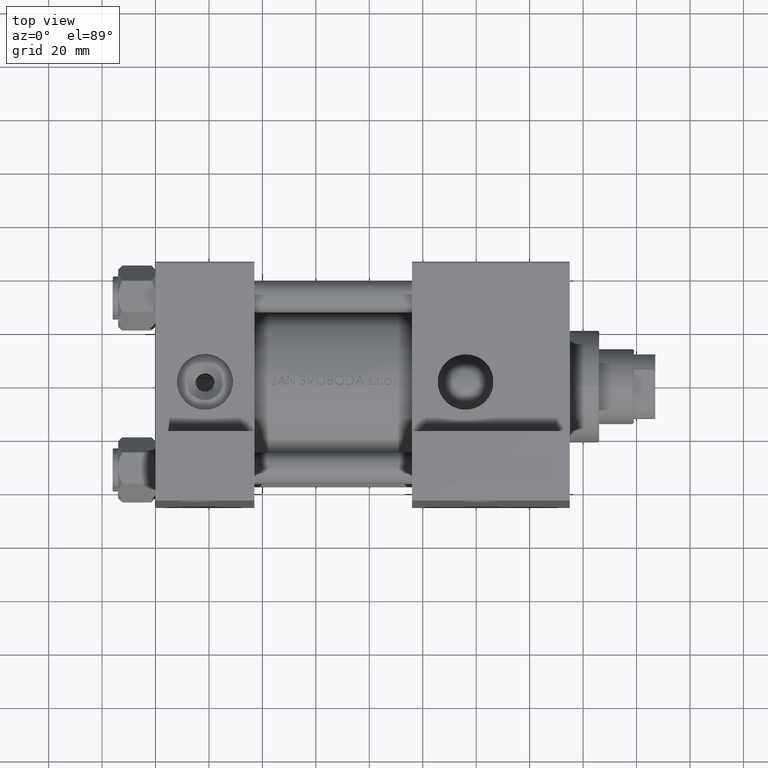
[diagram: clean part render]
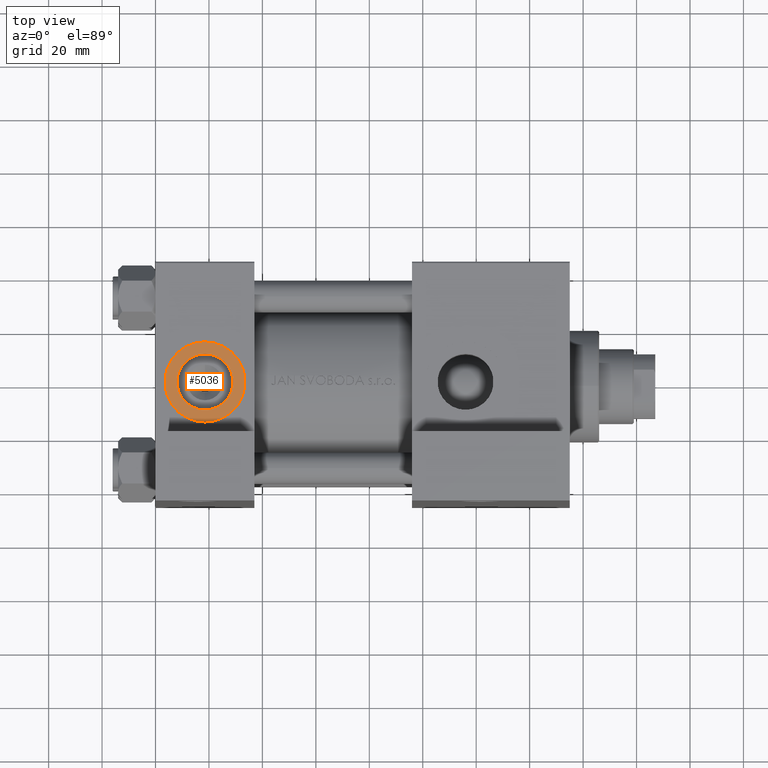
[diagram: same view with one face highlighted and labeled with its STEP entity id]
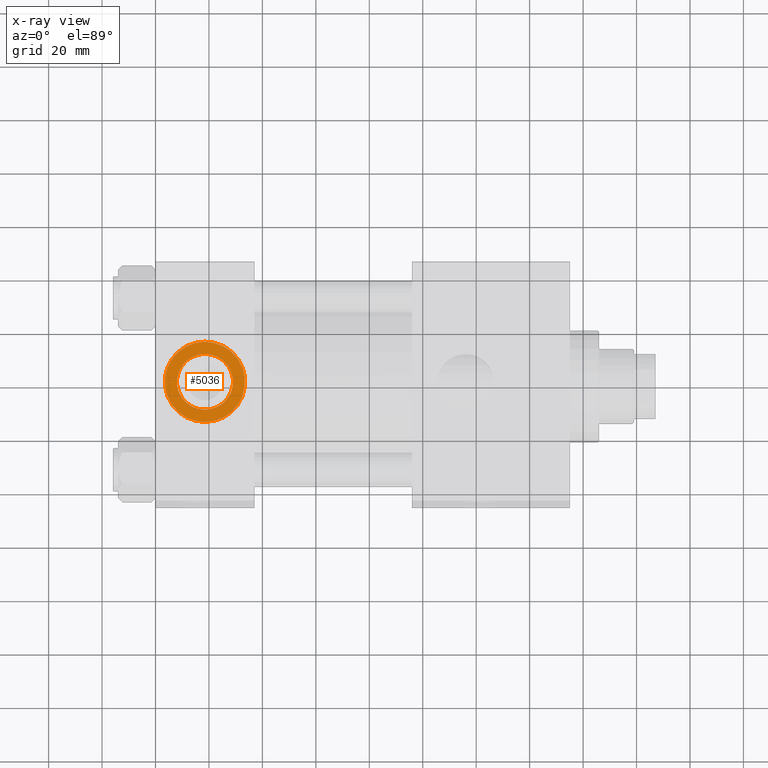
[diagram: x-ray of the same camera — body ghosted, the highlighted face saturated]
A machine part, top view. The second image highlights one B-rep face of the part: STEP entity #5036.
The next image is the same camera in x-ray: the body ghosted, the highlighted face saturated — about 0% of this face is hidden behind the body in this view.
In plain terms, the highlighted planar face has unit normal (0, -0, 1).
Its self-contained STEP definition (entity closure, byte-faithful):
#775 = CARTESIAN_POINT ( 'NONE',  ( 18.50000000000000000, -44.79999999999999716, -3.452099717193846907E-15 ) ) ;
#2315 = FACE_OUTER_BOUND ( 'NONE', #38461, .T. ) ;
#3498 = DIRECTION ( 'NONE',  ( 0.000000000000000000, 8.673617379884036705E-17, -1.000000000000000000 ) ) ;
#5036 = ADVANCED_FACE ( 'NONE', ( #35281, #2315 ), #16988, .T. ) ;
#5807 = CARTESIAN_POINT ( 'NONE',  ( 18.50000000000000000, -44.79999999999999716, 10.47999999999999687 ) ) ;
#7493 = VERTEX_POINT ( 'NONE', #45781 ) ;
#8918 = DIRECTION ( 'NONE',  ( 0.000000000000000000, -1.000000000000000000, -8.673617379884036705E-17 ) ) ;
#9437 = VERTEX_POINT ( 'NONE', #43790 ) ;
#11807 = AXIS2_PLACEMENT_3D ( 'NONE', #46374, #28063, #3498 ) ;
#14487 = DIRECTION ( 'NONE',  ( 0.000000000000000000, -1.000000000000000000, -8.673617379884036705E-17 ) ) ;
#15446 = DIRECTION ( 'NONE',  ( 0.000000000000000000, 0.000000000000000000, -1.000000000000000000 ) ) ;
#15965 = VERTEX_POINT ( 'NONE', #5807 ) ;
#16131 = DIRECTION ( 'NONE',  ( 0.000000000000000000, 0.000000000000000000, -1.000000000000000000 ) ) ;
#16142 = AXIS2_PLACEMENT_3D ( 'NONE', #45751, #8918, #16131 ) ;
#16988 = PLANE ( 'NONE',  #11807 ) ;
#18095 = DIRECTION ( 'NONE',  ( 0.000000000000000000, 0.000000000000000000, -1.000000000000000000 ) ) ;
#19583 = CIRCLE ( 'NONE', #21885, 10.48000000000000043 ) ;
#21885 = AXIS2_PLACEMENT_3D ( 'NONE', #25813, #14487, #18095 ) ;
#25813 = CARTESIAN_POINT ( 'NONE',  ( 18.50000000000000000, -44.79999999999999716, -3.452099717193846907E-15 ) ) ;
#26035 = EDGE_CURVE ( 'NONE', #9437, #27992, #34580, .T. ) ;
#27992 = VERTEX_POINT ( 'NONE', #45462 ) ;
#28063 = DIRECTION ( 'NONE',  ( 0.000000000000000000, -1.000000000000000000, -8.673617379884036705E-17 ) ) ;
#28639 = ORIENTED_EDGE ( 'NONE', *, *, #46354, .F. ) ;
#34011 = ORIENTED_EDGE ( 'NONE', *, *, #26035, .T. ) ;
#34580 = CIRCLE ( 'NONE', #16142, 15.00000000000000178 ) ;
#35022 = EDGE_CURVE ( 'NONE', #27992, #9437, #45439, .T. ) ;
#35281 = FACE_BOUND ( 'NONE', #45447, .T. ) ;
#38042 = CIRCLE ( 'NONE', #44207, 10.48000000000000043 ) ;
#38461 = EDGE_LOOP ( 'NONE', ( #41193, #34011 ) ) ;
#39284 = AXIS2_PLACEMENT_3D ( 'NONE', #45240, #41852, #45962 ) ;
#41193 = ORIENTED_EDGE ( 'NONE', *, *, #35022, .T. ) ;
#41432 = DIRECTION ( 'NONE',  ( 0.000000000000000000, -1.000000000000000000, -8.673617379884036705E-17 ) ) ;
#41852 = DIRECTION ( 'NONE',  ( 0.000000000000000000, -1.000000000000000000, -8.673617379884036705E-17 ) ) ;
#42355 = ORIENTED_EDGE ( 'NONE', *, *, #47222, .F. ) ;
#43790 = CARTESIAN_POINT ( 'NONE',  ( 18.50000000000000355, -44.79999999999999716, 14.99999999999999822 ) ) ;
#44207 = AXIS2_PLACEMENT_3D ( 'NONE', #775, #41432, #15446 ) ;
#45240 = CARTESIAN_POINT ( 'NONE',  ( 18.50000000000000000, -44.79999999999999716, -3.452099717193846907E-15 ) ) ;
#45439 = CIRCLE ( 'NONE', #39284, 15.00000000000000178 ) ;
#45447 = EDGE_LOOP ( 'NONE', ( #42355, #28639 ) ) ;
#45462 = CARTESIAN_POINT ( 'NONE',  ( 18.50000000000000000, -44.79999999999999716, -15.00000000000000533 ) ) ;
#45751 = CARTESIAN_POINT ( 'NONE',  ( 18.50000000000000000, -44.79999999999999716, -3.452099717193846907E-15 ) ) ;
#45781 = CARTESIAN_POINT ( 'NONE',  ( 18.50000000000000000, -44.79999999999999716, -10.48000000000000398 ) ) ;
#45962 = DIRECTION ( 'NONE',  ( 0.000000000000000000, 0.000000000000000000, -1.000000000000000000 ) ) ;
#46354 = EDGE_CURVE ( 'NONE', #15965, #7493, #19583, .T. ) ;
#46374 = CARTESIAN_POINT ( 'NONE',  ( 18.50000000000000000, -44.79999999999999716, -3.452099717193846907E-15 ) ) ;
#47222 = EDGE_CURVE ( 'NONE', #7493, #15965, #38042, .T. ) ;